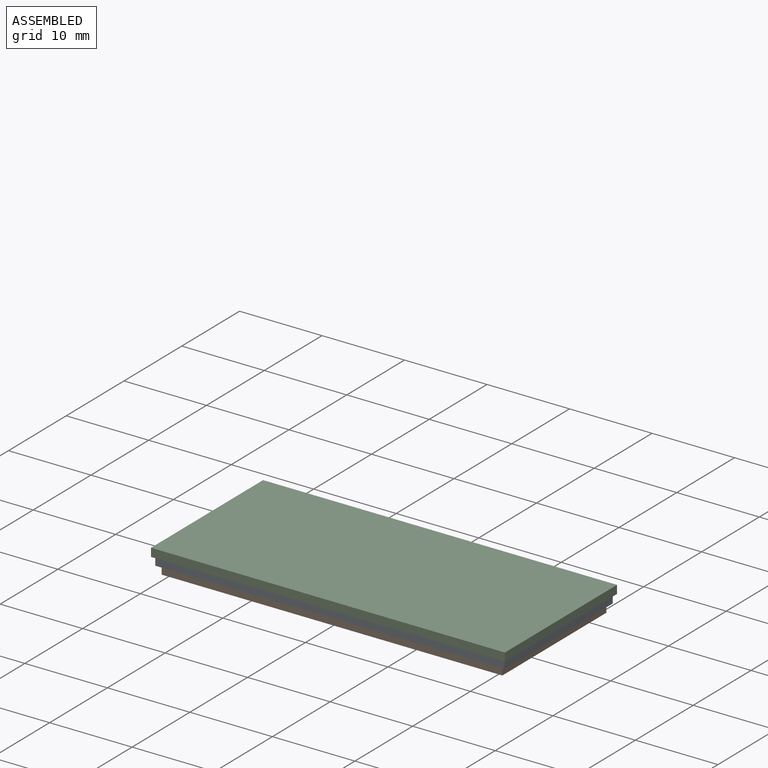
[diagram: assembled view]
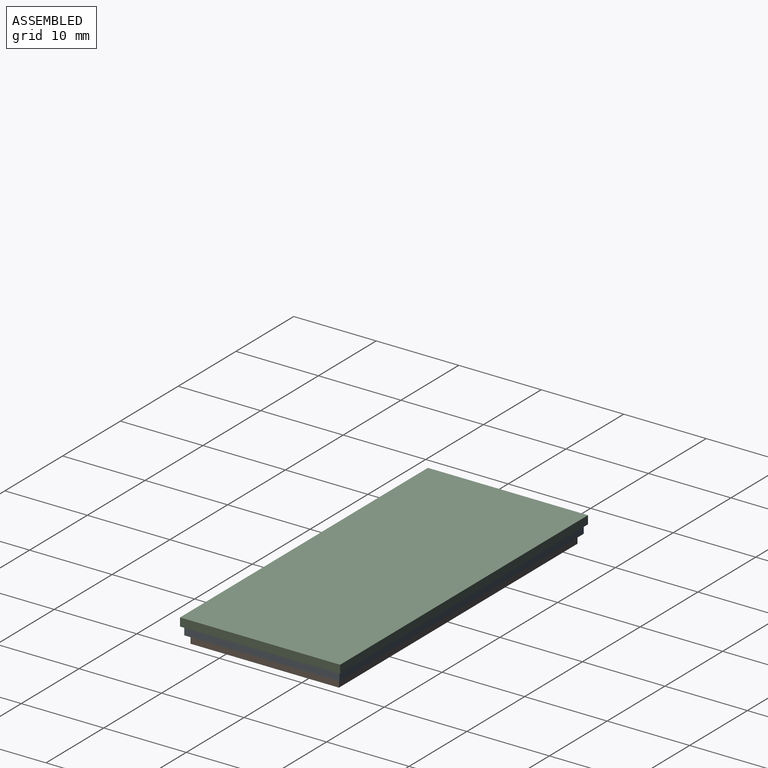
[diagram: assembled view, second angle]
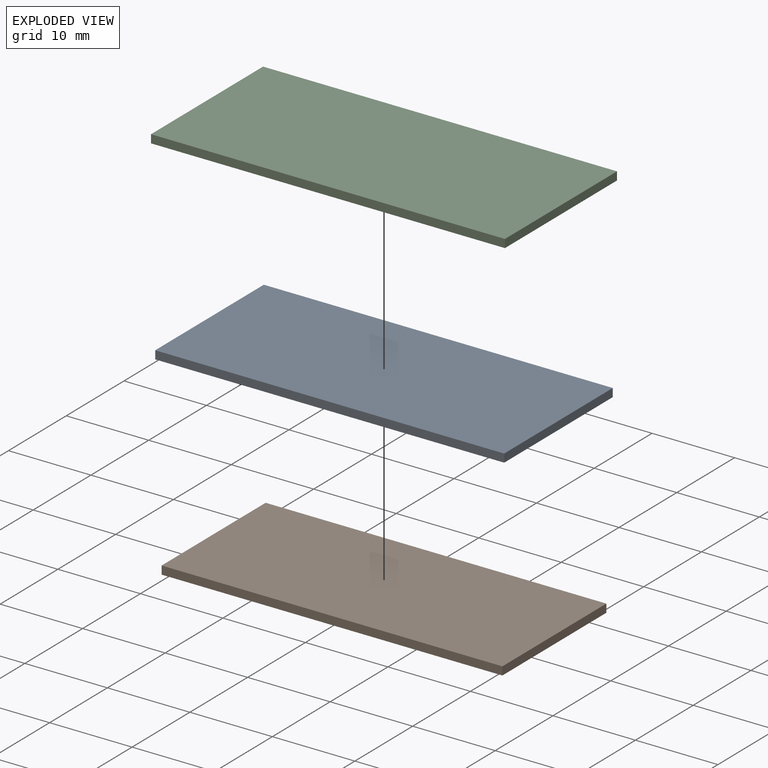
[diagram: exploded view]
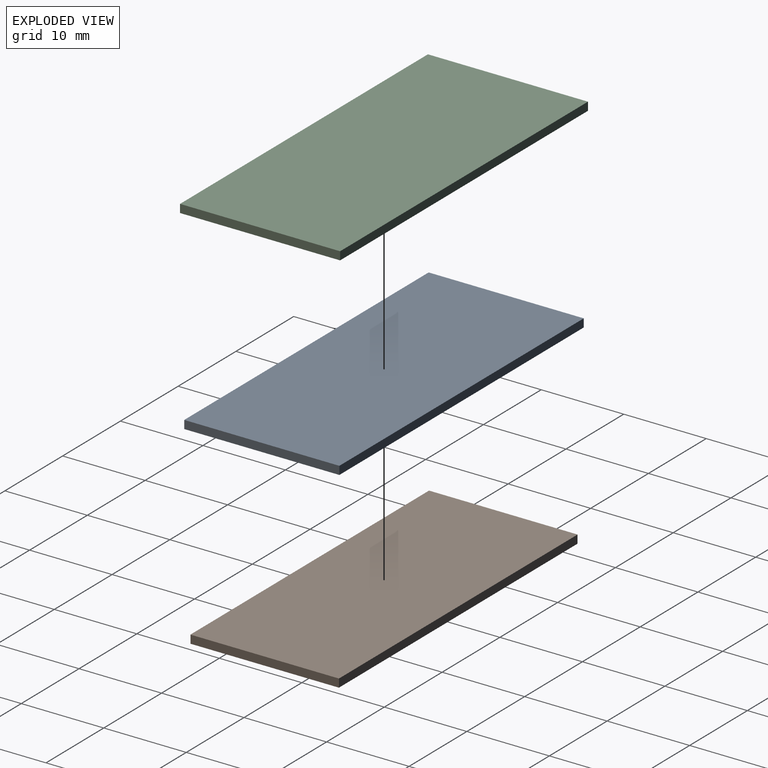
[diagram: exploded view, second angle]
ASSEMBLY  parts=3 mates=2
PART A: 6 faces, bbox 42.3x18.8x1 mm
  f0: plane 42.3x1mm, normal (0,1,0), area 42.3mm2, adj f1,f3,f4,f5
  f1: plane 18.8x1mm, normal (-1,0,0), area 18.8mm2, adj f0,f2,f4,f5
  f2: plane 42.3x1mm, normal (0,-1,0), area 42.3mm2, adj f1,f3,f4,f5
  f3: plane 18.8x1mm, normal (1,0,0), area 18.8mm2, adj f0,f2,f4,f5
  f4: plane 42.3x18.8mm, normal (0,0,1), area 795.2mm2, adj f0,f1,f2,f3
  f5: plane 42.3x18.8mm, normal (0,0,-1), area 795.2mm2, adj f0,f1,f2,f3
PART B: 6 faces, bbox 41.3x18x1 mm
  f0: plane 18x1mm, normal (-1,0,0), area 18mm2, adj f1,f3,f4,f5
  f1: plane 41.3x1mm, normal (0,-1,0), area 41.3mm2, adj f0,f2,f4,f5
  f2: plane 18x1mm, normal (1,0,0), area 18mm2, adj f1,f3,f4,f5
  f3: plane 41.3x1mm, normal (0,1,0), area 41.3mm2, adj f0,f2,f4,f5
  f4: plane 41.3x18mm, normal (0,0,1), area 743.4mm2, adj f0,f1,f2,f3
  f5: plane 41.3x18mm, normal (0,0,-1), area 743.4mm2, adj f0,f1,f2,f3
PART C: 6 faces, bbox 42.9x19.4x1 mm
  f0: plane 42.9x1mm, normal (0,1,0), area 42.9mm2, adj f1,f3,f4,f5
  f1: plane 19.4x1mm, normal (-1,0,0), area 19.4mm2, adj f0,f2,f4,f5
  f2: plane 42.9x1mm, normal (0,-1,0), area 42.9mm2, adj f1,f3,f4,f5
  f3: plane 19.4x1mm, normal (1,0,0), area 19.4mm2, adj f0,f2,f4,f5
  f4: plane 42.9x19.4mm, normal (0,0,1), area 832.3mm2, adj f0,f1,f2,f3
  f5: plane 42.9x19.4mm, normal (0,0,-1), area 832.3mm2, adj f0,f1,f2,f3
PLACE A t=(-7.16,-0.52,0.44)mm
PLACE B t=(-7.06,-0.52,-0.56)mm
PLACE C t=(-7.16,-0.52,1.44)mm
MATE fastened B.f4 <-> A.f5  axis (0,0,1) through (13.59,8.48,0.44)mm
MATE fastened C.f5 <-> A.f4  axis (0,0,-1) through (13.59,8.48,1.44)mm
